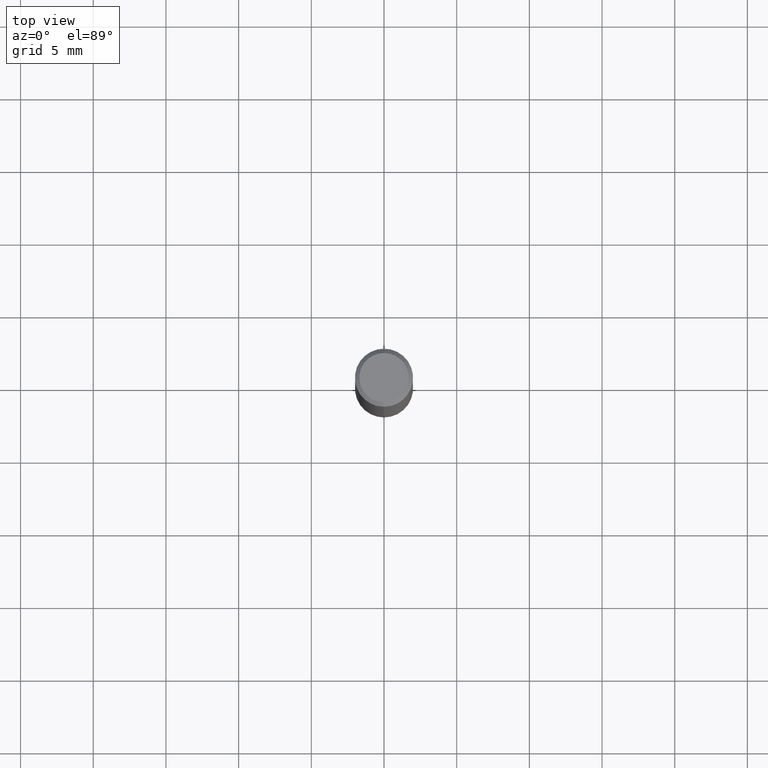
[diagram: clean part render]
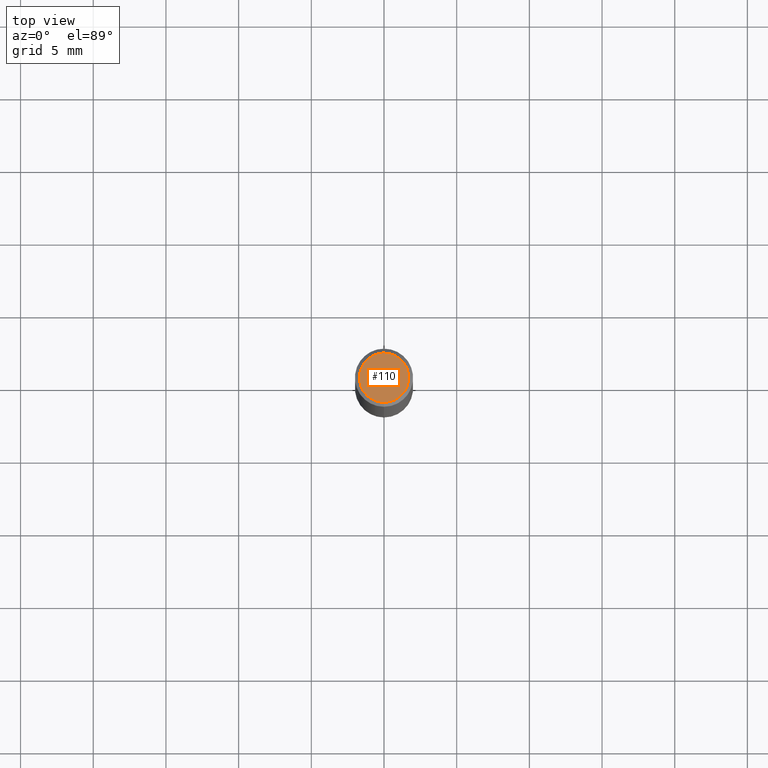
[diagram: same view with one face highlighted and labeled with its STEP entity id]
A machine part, top view. The second image highlights one B-rep face of the part: STEP entity #110.
In plain terms, the highlighted planar face has unit normal (-0, 0, 1).
Its self-contained STEP definition (entity closure, byte-faithful):
#110=ADVANCED_FACE('',(#264),#265,.T.);
#150=VERTEX_POINT('',#314);
#156=EDGE_CURVE('',#150,#164,#320,.T.);
#164=VERTEX_POINT('',#331);
#208=EDGE_CURVE('',#164,#150,#377,.T.);
#264=FACE_OUTER_BOUND('',#428,.T.);
#265=PLANE('',#429);
#314=CARTESIAN_POINT('',(0.0,1.7,0.0));
#320=CIRCLE('',#497,1.7);
#331=CARTESIAN_POINT('',(2.08183080149804E-016,-1.7,0.0));
#377=CIRCLE('',#568,1.7);
#428=EDGE_LOOP('',(#620,#621));
#429=AXIS2_PLACEMENT_3D('',#622,#623,#624);
#497=AXIS2_PLACEMENT_3D('',#708,#709,#710);
#568=AXIS2_PLACEMENT_3D('',#774,#775,#776);
#620=ORIENTED_EDGE('',*,*,#156,.F.);
#621=ORIENTED_EDGE('',*,*,#208,.F.);
#622=CARTESIAN_POINT('',(0.0,0.85,0.0));
#623=DIRECTION('',(-0.0,0.0,1.0));
#624=DIRECTION('',(0.0,-1.0,0.0));
#708=CARTESIAN_POINT('',(0.0,0.0,0.0));
#709=DIRECTION('',(0.0,0.0,-1.0));
#710=DIRECTION('',(0.0,1.0,0.0));
#774=CARTESIAN_POINT('',(0.0,0.0,0.0));
#775=DIRECTION('',(0.0,0.0,-1.0));
#776=DIRECTION('',(0.0,1.0,0.0));